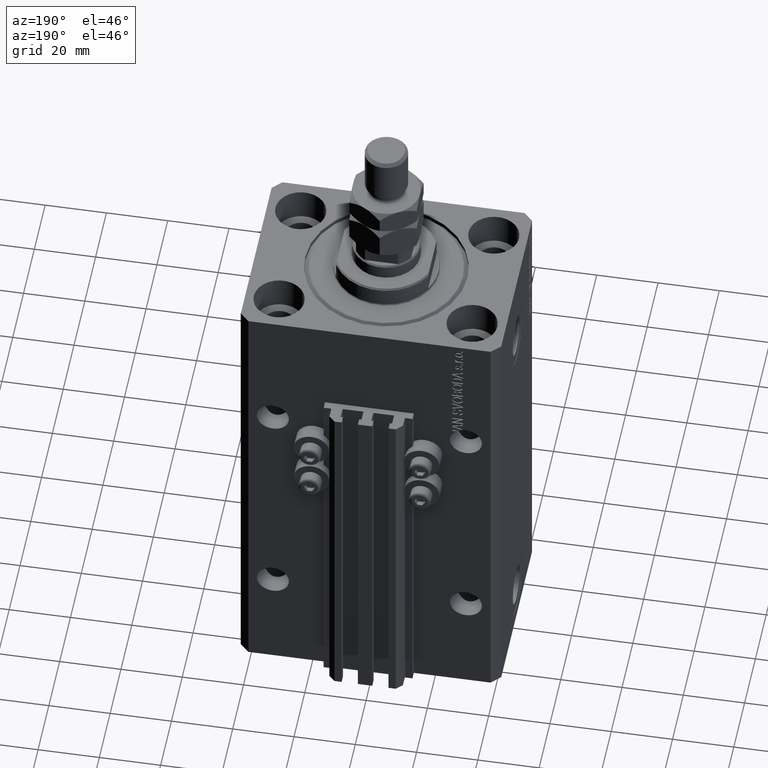
[diagram: clean part render]
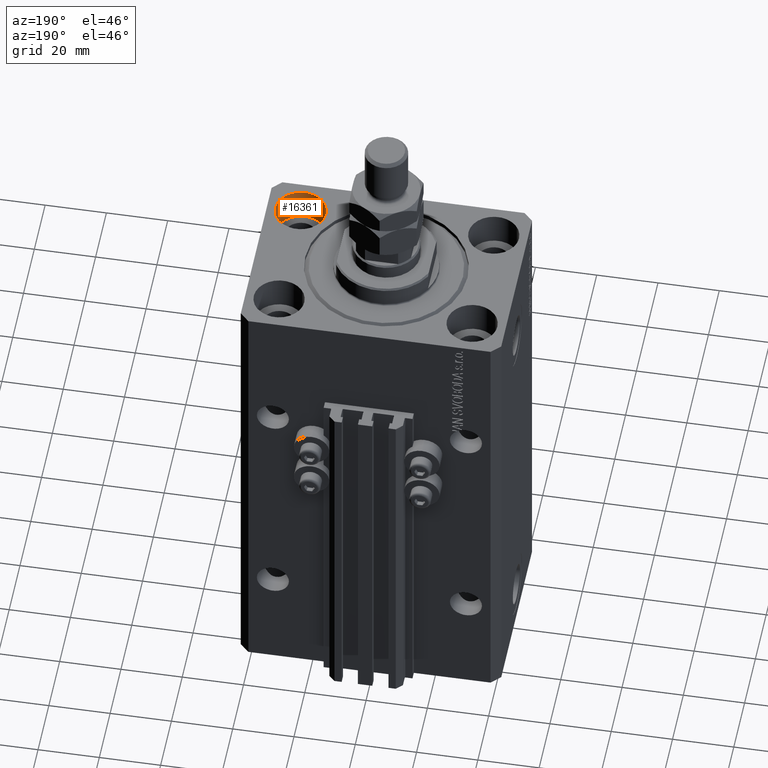
[diagram: same view with one face highlighted and labeled with its STEP entity id]
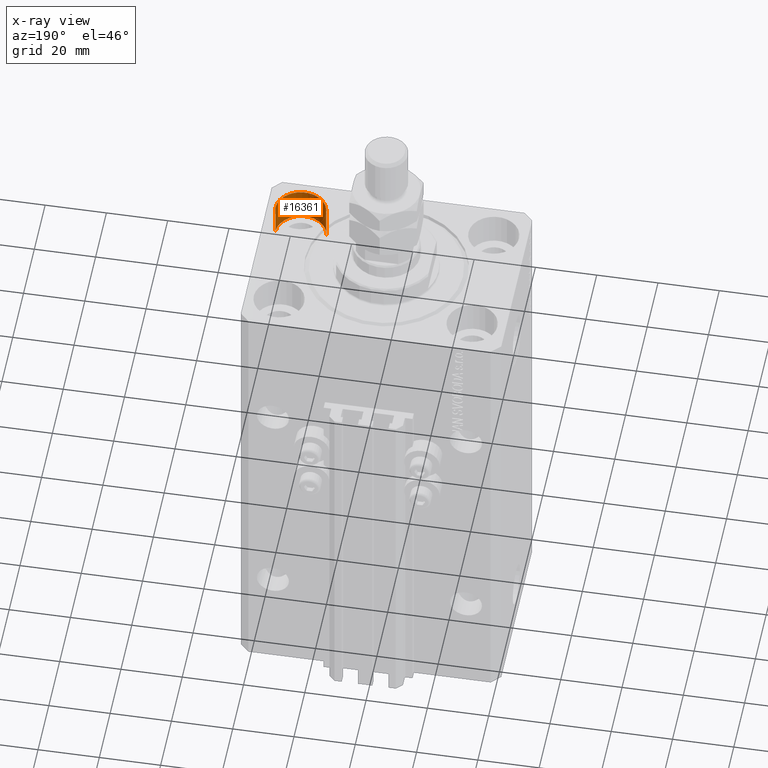
[diagram: x-ray of the same camera — body ghosted, the highlighted face saturated]
A machine part, auxiliary view. The second image highlights one B-rep face of the part: STEP entity #16361.
The next image is the same camera in x-ray: the body ghosted, the highlighted face saturated — about 0% of this face is hidden behind the body in this view.
In plain terms, the highlighted cylindrical surface (edge-blend (fillet) strip) has radius 8.25 mm, axis along (0, 0, 1).
Its self-contained STEP definition (entity closure, byte-faithful):
#2313 = CARTESIAN_POINT ( 'NONE',  ( 23.25000000000000355, -20.00000000000000000, 0.000000000000000000 ) ) ;
#4127 = DIRECTION ( 'NONE',  ( 1.000000000000000000, 0.000000000000000000, 0.000000000000000000 ) ) ;
#4220 = AXIS2_PLACEMENT_3D ( 'NONE', #34615, #42724, #42226 ) ;
#5497 = CIRCLE ( 'NONE', #33091, 8.249999999999992895 ) ;
#5603 = CARTESIAN_POINT ( 'NONE',  ( 39.74999999999999289, -20.00000000000000000, 0.000000000000000000 ) ) ;
#6807 = CARTESIAN_POINT ( 'NONE',  ( 39.74999999999999289, -20.00000000000000000, -11.00000000000000000 ) ) ;
#8083 = CIRCLE ( 'NONE', #15403, 8.249999999999992895 ) ;
#10540 = EDGE_LOOP ( 'NONE', ( #18294, #24151, #12531, #39760 ) ) ;
#11268 = DIRECTION ( 'NONE',  ( -0.000000000000000000, -0.000000000000000000, 1.000000000000000000 ) ) ;
#12531 = ORIENTED_EDGE ( 'NONE', *, *, #44538, .T. ) ;
#14572 = CARTESIAN_POINT ( 'NONE',  ( 23.25000000000000355, -20.00000000000000000, -11.00000000000000000 ) ) ;
#15055 = FACE_OUTER_BOUND ( 'NONE', #10540, .T. ) ;
#15403 = AXIS2_PLACEMENT_3D ( 'NONE', #26508, #45798, #4127 ) ;
#15542 = VERTEX_POINT ( 'NONE', #48966 ) ;
#16361 = ADVANCED_FACE ( 'NONE', ( #15055 ), #30320, .F. ) ;
#17759 = CARTESIAN_POINT ( 'NONE',  ( 39.74999999999999289, -20.00000000000000000, -11.00000000000000000 ) ) ;
#18294 = ORIENTED_EDGE ( 'NONE', *, *, #30915, .F. ) ;
#18382 = VECTOR ( 'NONE', #48741, 1000.000000000000000 ) ;
#19115 = LINE ( 'NONE', #14572, #44361 ) ;
#19411 = VERTEX_POINT ( 'NONE', #5603 ) ;
#24151 = ORIENTED_EDGE ( 'NONE', *, *, #29486, .T. ) ;
#24591 = VERTEX_POINT ( 'NONE', #6807 ) ;
#25963 = DIRECTION ( 'NONE',  ( 1.000000000000000000, 0.000000000000000000, 0.000000000000000000 ) ) ;
#26508 = CARTESIAN_POINT ( 'NONE',  ( 31.50000000000000000, -20.00000000000000000, 0.000000000000000000 ) ) ;
#29486 = EDGE_CURVE ( 'NONE', #15542, #35042, #19115, .T. ) ;
#30320 = CYLINDRICAL_SURFACE ( 'NONE', #4220, 8.249999999999992895 ) ;
#30915 = EDGE_CURVE ( 'NONE', #15542, #24591, #5497, .T. ) ;
#33091 = AXIS2_PLACEMENT_3D ( 'NONE', #46243, #49800, #25963 ) ;
#34615 = CARTESIAN_POINT ( 'NONE',  ( 31.50000000000000000, -20.00000000000000000, -11.00000000000000000 ) ) ;
#35042 = VERTEX_POINT ( 'NONE', #2313 ) ;
#38374 = EDGE_CURVE ( 'NONE', #24591, #19411, #41142, .T. ) ;
#39760 = ORIENTED_EDGE ( 'NONE', *, *, #38374, .F. ) ;
#41142 = LINE ( 'NONE', #17759, #18382 ) ;
#42226 = DIRECTION ( 'NONE',  ( 1.000000000000000000, 0.000000000000000000, 0.000000000000000000 ) ) ;
#42724 = DIRECTION ( 'NONE',  ( -0.000000000000000000, -0.000000000000000000, 1.000000000000000000 ) ) ;
#44361 = VECTOR ( 'NONE', #11268, 1000.000000000000000 ) ;
#44538 = EDGE_CURVE ( 'NONE', #35042, #19411, #8083, .T. ) ;
#45798 = DIRECTION ( 'NONE',  ( 0.000000000000000000, 0.000000000000000000, 1.000000000000000000 ) ) ;
#46243 = CARTESIAN_POINT ( 'NONE',  ( 31.50000000000000000, -20.00000000000000000, -11.00000000000000000 ) ) ;
#48741 = DIRECTION ( 'NONE',  ( -0.000000000000000000, -0.000000000000000000, 1.000000000000000000 ) ) ;
#48966 = CARTESIAN_POINT ( 'NONE',  ( 23.25000000000000355, -20.00000000000000000, -11.00000000000000000 ) ) ;
#49800 = DIRECTION ( 'NONE',  ( 0.000000000000000000, 0.000000000000000000, 1.000000000000000000 ) ) ;